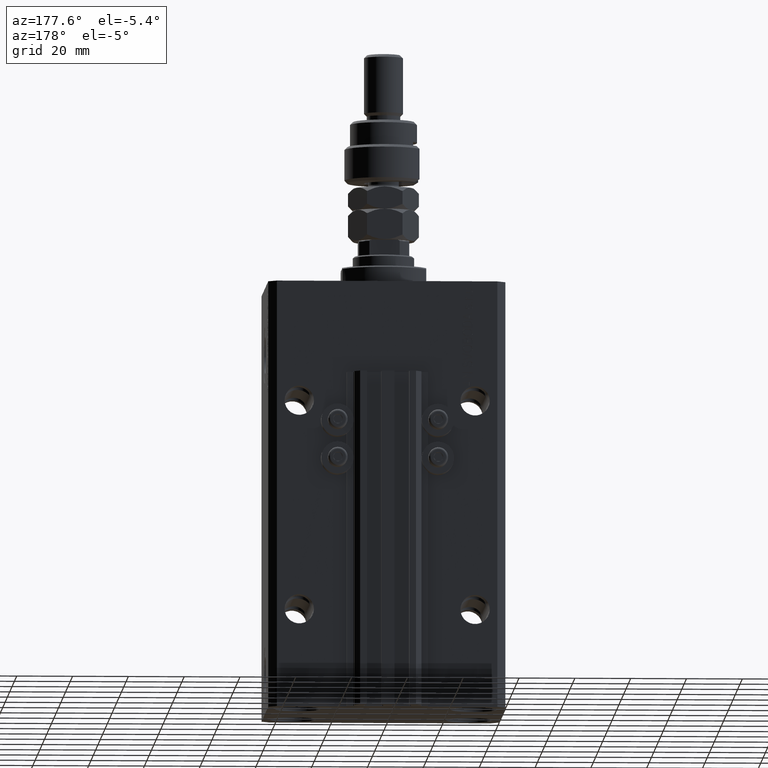
[diagram: clean part render]
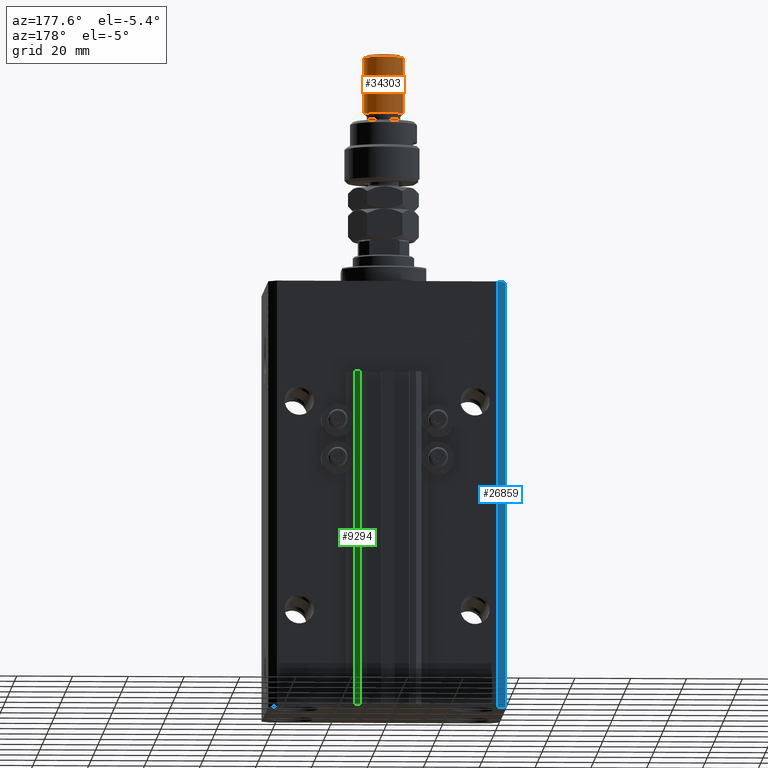
[diagram: same view with three faces highlighted in distinct colors, each labeled with its STEP entity id]
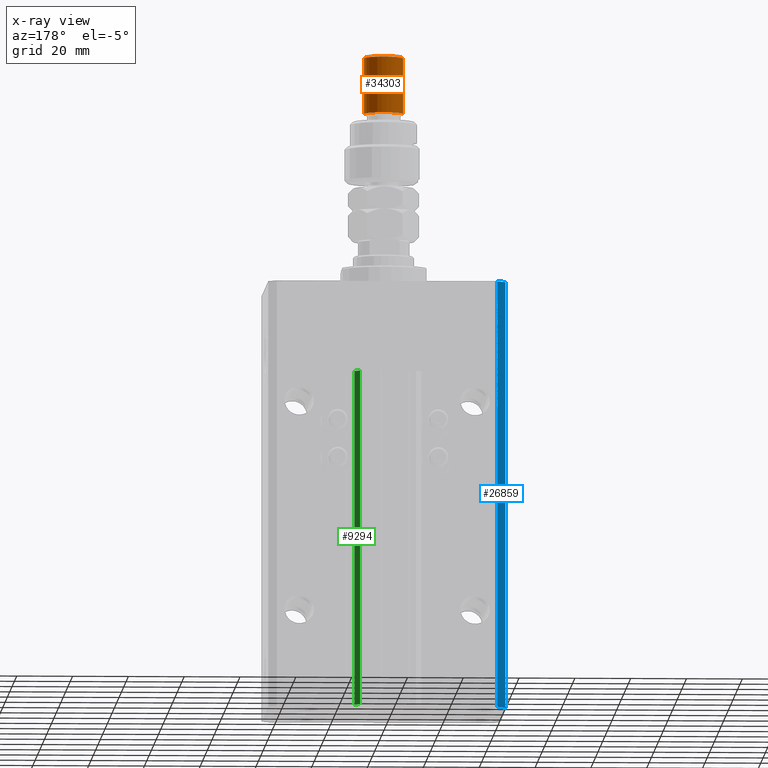
[diagram: x-ray of the same camera — body ghosted, the three highlighted faces saturated]
A machine part, auxiliary view with three faces highlighted in distinct colors.
The next image is the same camera in x-ray (body ghosted, the three faces saturated) — at least one of them is partly hidden behind the body in this view.
Their STEP definitions:

[orange] entity #34303 — the highlighted cylindrical surface (edge-blend (fillet) strip) has radius 7 mm, axis along (-0, -0, -1).
#176 = DIRECTION ( 'NONE',  ( -0.000000000000000000, -0.000000000000000000, 1.000000000000000000 ) ) ;
#3616 = CARTESIAN_POINT ( 'NONE',  ( 0.000000000000000000, 0.000000000000000000, 44.99999999999999289 ) ) ;
#5619 = ORIENTED_EDGE ( 'NONE', *, *, #8664, .F. ) ;
#6675 = AXIS2_PLACEMENT_3D ( 'NONE', #44568, #27901, #16063 ) ;
#8569 = VECTOR ( 'NONE', #38570, 1000.000000000000000 ) ;
#8664 = EDGE_CURVE ( 'NONE', #36784, #40778, #21922, .T. ) ;
#9006 = EDGE_CURVE ( 'NONE', #49545, #18722, #11041, .T. ) ;
#9595 = ORIENTED_EDGE ( 'NONE', *, *, #42615, .T. ) ;
#11041 = LINE ( 'NONE', #42452, #8569 ) ;
#11549 = AXIS2_PLACEMENT_3D ( 'NONE', #3616, #14459, #31187 ) ;
#13403 = FACE_OUTER_BOUND ( 'NONE', #18094, .T. ) ;
#14459 = DIRECTION ( 'NONE',  ( 0.000000000000000000, 0.000000000000000000, -1.000000000000000000 ) ) ;
#16063 = DIRECTION ( 'NONE',  ( -1.000000000000000000, 0.000000000000000000, 0.000000000000000000 ) ) ;
#18063 = DIRECTION ( 'NONE',  ( -0.000000000000000000, -0.000000000000000000, -1.000000000000000000 ) ) ;
#18094 = EDGE_LOOP ( 'NONE', ( #50857, #18667, #9595, #5619 ) ) ;
#18667 = ORIENTED_EDGE ( 'NONE', *, *, #9006, .T. ) ;
#18722 = VERTEX_POINT ( 'NONE', #33572 ) ;
#20011 = CARTESIAN_POINT ( 'NONE',  ( 0.000000000000000000, 0.000000000000000000, 24.99999999999998934 ) ) ;
#21922 = LINE ( 'NONE', #37125, #27463 ) ;
#24273 = CIRCLE ( 'NONE', #38258, 7.000000000000000000 ) ;
#27463 = VECTOR ( 'NONE', #18063, 1000.000000000000000 ) ;
#27901 = DIRECTION ( 'NONE',  ( -0.000000000000000000, -0.000000000000000000, -1.000000000000000000 ) ) ;
#28221 = EDGE_CURVE ( 'NONE', #36784, #49545, #46073, .T. ) ;
#29664 = CARTESIAN_POINT ( 'NONE',  ( -7.000000000000000000, 0.000000000000000000, 44.99999999999999289 ) ) ;
#31187 = DIRECTION ( 'NONE',  ( 1.000000000000000000, 0.000000000000000000, 0.000000000000000000 ) ) ;
#33572 = CARTESIAN_POINT ( 'NONE',  ( 7.000000000000000000, 8.572527594031473190E-16, 24.99999999999998934 ) ) ;
#34303 = ADVANCED_FACE ( 'NONE', ( #13403 ), #37343, .T. ) ;
#36784 = VERTEX_POINT ( 'NONE', #29664 ) ;
#37125 = CARTESIAN_POINT ( 'NONE',  ( -7.000000000000000000, 0.000000000000000000, 46.00000000000000000 ) ) ;
#37343 = CYLINDRICAL_SURFACE ( 'NONE', #6675, 7.000000000000000000 ) ;
#38258 = AXIS2_PLACEMENT_3D ( 'NONE', #20011, #176, #39327 ) ;
#38570 = DIRECTION ( 'NONE',  ( -0.000000000000000000, -0.000000000000000000, -1.000000000000000000 ) ) ;
#39327 = DIRECTION ( 'NONE',  ( 1.000000000000000000, 0.000000000000000000, 0.000000000000000000 ) ) ;
#40303 = CARTESIAN_POINT ( 'NONE',  ( 7.000000000000000000, 8.572527594031473190E-16, 44.99999999999999289 ) ) ;
#40778 = VERTEX_POINT ( 'NONE', #47478 ) ;
#42452 = CARTESIAN_POINT ( 'NONE',  ( 7.000000000000000000, 8.572527594031473190E-16, 46.00000000000000000 ) ) ;
#42615 = EDGE_CURVE ( 'NONE', #18722, #40778, #24273, .T. ) ;
#44568 = CARTESIAN_POINT ( 'NONE',  ( 0.000000000000000000, 0.000000000000000000, 46.00000000000000000 ) ) ;
#46073 = CIRCLE ( 'NONE', #11549, 7.000000000000000000 ) ;
#47478 = CARTESIAN_POINT ( 'NONE',  ( -7.000000000000000000, 0.000000000000000000, 24.99999999999998934 ) ) ;
#49545 = VERTEX_POINT ( 'NONE', #40303 ) ;
#50857 = ORIENTED_EDGE ( 'NONE', *, *, #28221, .T. ) ;

[blue] entity #26859 — the highlighted planar face has unit normal (-0.7071, 0.7071, 0).
#824 = EDGE_CURVE ( 'NONE', #2495, #11244, #28990, .T. ) ;
#1130 = VERTEX_POINT ( 'NONE', #19931 ) ;
#1337 = LINE ( 'NONE', #32260, #10846 ) ;
#2495 = VERTEX_POINT ( 'NONE', #33269 ) ;
#5135 = LINE ( 'NONE', #41442, #21932 ) ;
#6430 = VECTOR ( 'NONE', #12625, 1000.000000000000000 ) ;
#8908 = ORIENTED_EDGE ( 'NONE', *, *, #24072, .F. ) ;
#10846 = VECTOR ( 'NONE', #16801, 1000.000000000000000 ) ;
#11244 = VERTEX_POINT ( 'NONE', #23449 ) ;
#12625 = DIRECTION ( 'NONE',  ( -0.7071067811865471286, -0.7071067811865479058, 0.000000000000000000 ) ) ;
#14016 = PLANE ( 'NONE',  #44424 ) ;
#16801 = DIRECTION ( 'NONE',  ( 0.000000000000000000, 0.000000000000000000, 1.000000000000000000 ) ) ;
#18144 = EDGE_CURVE ( 'NONE', #11244, #43048, #5135, .T. ) ;
#19931 = CARTESIAN_POINT ( 'NONE',  ( -39.50000000000000711, 31.50000000000000000, 0.000000000000000000 ) ) ;
#21261 = CARTESIAN_POINT ( 'NONE',  ( -39.50000000000000711, 31.50000000000000000, -153.0000000000000000 ) ) ;
#21437 = ORIENTED_EDGE ( 'NONE', *, *, #824, .T. ) ;
#21932 = VECTOR ( 'NONE', #49438, 1000.000000000000000 ) ;
#22244 = DIRECTION ( 'NONE',  ( -0.7071067811865471286, -0.7071067811865479058, 0.000000000000000000 ) ) ;
#23449 = CARTESIAN_POINT ( 'NONE',  ( -42.50000000000000000, 28.50000000000000000, -153.0000000000000000 ) ) ;
#24072 = EDGE_CURVE ( 'NONE', #1130, #43048, #35550, .T. ) ;
#26859 = ADVANCED_FACE ( 'NONE', ( #37203 ), #14016, .T. ) ;
#28990 = LINE ( 'NONE', #21261, #49388 ) ;
#29480 = DIRECTION ( 'NONE',  ( -0.7071067811865479058, 0.7071067811865471286, 0.000000000000000000 ) ) ;
#31084 = ORIENTED_EDGE ( 'NONE', *, *, #35060, .F. ) ;
#32260 = CARTESIAN_POINT ( 'NONE',  ( -39.50000000000000711, 31.50000000000000000, -153.0000000000000000 ) ) ;
#33269 = CARTESIAN_POINT ( 'NONE',  ( -39.50000000000000711, 31.50000000000000000, -153.0000000000000000 ) ) ;
#34837 = ORIENTED_EDGE ( 'NONE', *, *, #18144, .T. ) ;
#35060 = EDGE_CURVE ( 'NONE', #2495, #1130, #1337, .T. ) ;
#35550 = LINE ( 'NONE', #40165, #6430 ) ;
#36962 = DIRECTION ( 'NONE',  ( -0.7071067811865471286, -0.7071067811865479058, 0.000000000000000000 ) ) ;
#37203 = FACE_OUTER_BOUND ( 'NONE', #44842, .T. ) ;
#40165 = CARTESIAN_POINT ( 'NONE',  ( -39.50000000000000711, 31.50000000000000000, 0.000000000000000000 ) ) ;
#41442 = CARTESIAN_POINT ( 'NONE',  ( -42.50000000000000000, 28.50000000000000000, -153.0000000000000000 ) ) ;
#43048 = VERTEX_POINT ( 'NONE', #48527 ) ;
#44424 = AXIS2_PLACEMENT_3D ( 'NONE', #49075, #29480, #22244 ) ;
#44842 = EDGE_LOOP ( 'NONE', ( #8908, #31084, #21437, #34837 ) ) ;
#48527 = CARTESIAN_POINT ( 'NONE',  ( -42.50000000000000000, 28.50000000000000000, 0.000000000000000000 ) ) ;
#49075 = CARTESIAN_POINT ( 'NONE',  ( -39.50000000000000711, 31.50000000000000000, -153.0000000000000000 ) ) ;
#49388 = VECTOR ( 'NONE', #36962, 1000.000000000000000 ) ;
#49438 = DIRECTION ( 'NONE',  ( 0.000000000000000000, 0.000000000000000000, 1.000000000000000000 ) ) ;

[green] entity #9294 — the highlighted planar face has unit normal (0.7071, 0.7071, 0).
#913 = VERTEX_POINT ( 'NONE', #3184 ) ;
#1705 = LINE ( 'NONE', #40869, #34549 ) ;
#3184 = CARTESIAN_POINT ( 'NONE',  ( 12.00000000000000000, 37.50000000000002132, -33.00000000000000000 ) ) ;
#4340 = ORIENTED_EDGE ( 'NONE', *, *, #25477, .T. ) ;
#5460 = CARTESIAN_POINT ( 'NONE',  ( 9.999999999999998224, 39.50000000000002132, -33.00000000000000000 ) ) ;
#6346 = CARTESIAN_POINT ( 'NONE',  ( 12.00000000000000000, 37.50000000000002132, -153.0000000000000000 ) ) ;
#6407 = DIRECTION ( 'NONE',  ( -0.7071067811865474617, 0.7071067811865474617, 0.000000000000000000 ) ) ;
#6799 = VERTEX_POINT ( 'NONE', #50242 ) ;
#9294 = ADVANCED_FACE ( 'NONE', ( #17181 ), #14582, .T. ) ;
#9528 = LINE ( 'NONE', #13887, #19951 ) ;
#9706 = DIRECTION ( 'NONE',  ( -0.7071067811865474617, 0.7071067811865474617, 0.000000000000000000 ) ) ;
#9767 = DIRECTION ( 'NONE',  ( 0.000000000000000000, 0.000000000000000000, 1.000000000000000000 ) ) ;
#11407 = EDGE_CURVE ( 'NONE', #20444, #913, #40680, .T. ) ;
#13887 = CARTESIAN_POINT ( 'NONE',  ( 12.00000000000000000, 37.50000000000002132, -33.00000000000000000 ) ) ;
#14582 = PLANE ( 'NONE',  #24180 ) ;
#14860 = EDGE_LOOP ( 'NONE', ( #37889, #33010, #46541, #4340 ) ) ;
#17181 = FACE_OUTER_BOUND ( 'NONE', #14860, .T. ) ;
#18758 = LINE ( 'NONE', #49193, #32809 ) ;
#19951 = VECTOR ( 'NONE', #6407, 1000.000000000000114 ) ;
#20444 = VERTEX_POINT ( 'NONE', #30305 ) ;
#24180 = AXIS2_PLACEMENT_3D ( 'NONE', #6346, #46006, #38514 ) ;
#25477 = EDGE_CURVE ( 'NONE', #6799, #35124, #18758, .T. ) ;
#30305 = CARTESIAN_POINT ( 'NONE',  ( 12.00000000000000000, 37.50000000000002132, -153.0000000000000000 ) ) ;
#31642 = EDGE_CURVE ( 'NONE', #20444, #6799, #1705, .T. ) ;
#32383 = VECTOR ( 'NONE', #9767, 1000.000000000000000 ) ;
#32809 = VECTOR ( 'NONE', #42188, 1000.000000000000000 ) ;
#33010 = ORIENTED_EDGE ( 'NONE', *, *, #11407, .F. ) ;
#34549 = VECTOR ( 'NONE', #9706, 1000.000000000000114 ) ;
#35124 = VERTEX_POINT ( 'NONE', #5460 ) ;
#36806 = CARTESIAN_POINT ( 'NONE',  ( 12.00000000000000000, 37.50000000000002132, -153.0000000000000000 ) ) ;
#37889 = ORIENTED_EDGE ( 'NONE', *, *, #49321, .F. ) ;
#38514 = DIRECTION ( 'NONE',  ( -0.7071067811865474617, 0.7071067811865474617, 0.000000000000000000 ) ) ;
#40680 = LINE ( 'NONE', #36806, #32383 ) ;
#40869 = CARTESIAN_POINT ( 'NONE',  ( 12.00000000000000000, 37.50000000000002132, -153.0000000000000000 ) ) ;
#42188 = DIRECTION ( 'NONE',  ( 0.000000000000000000, 0.000000000000000000, 1.000000000000000000 ) ) ;
#46006 = DIRECTION ( 'NONE',  ( 0.7071067811865475727, 0.7071067811865475727, -0.000000000000000000 ) ) ;
#46541 = ORIENTED_EDGE ( 'NONE', *, *, #31642, .T. ) ;
#49193 = CARTESIAN_POINT ( 'NONE',  ( 9.999999999999998224, 39.50000000000002132, -153.0000000000000000 ) ) ;
#49321 = EDGE_CURVE ( 'NONE', #913, #35124, #9528, .T. ) ;
#50242 = CARTESIAN_POINT ( 'NONE',  ( 9.999999999999998224, 39.50000000000002132, -153.0000000000000000 ) ) ;